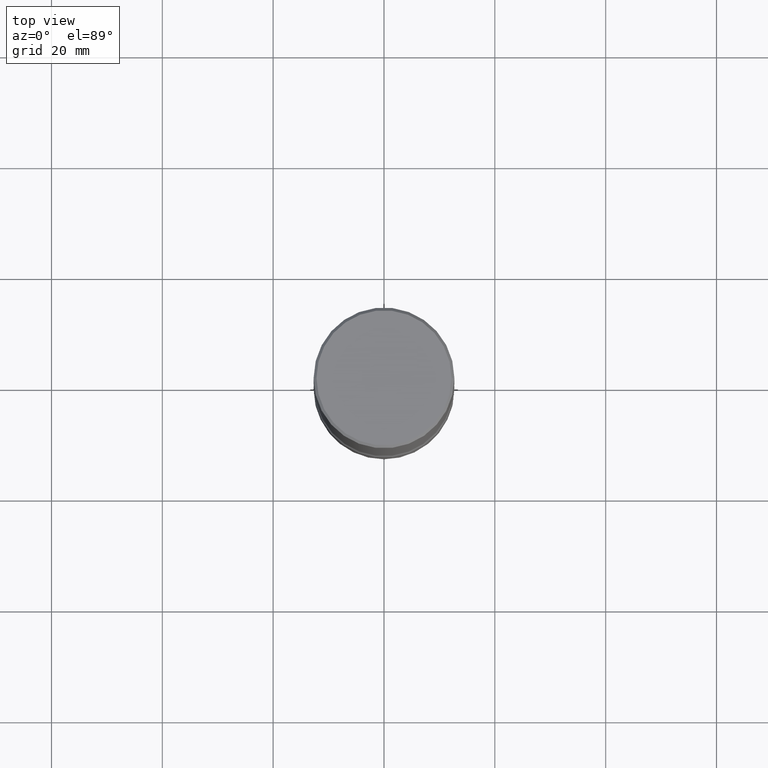
[diagram: clean part render]
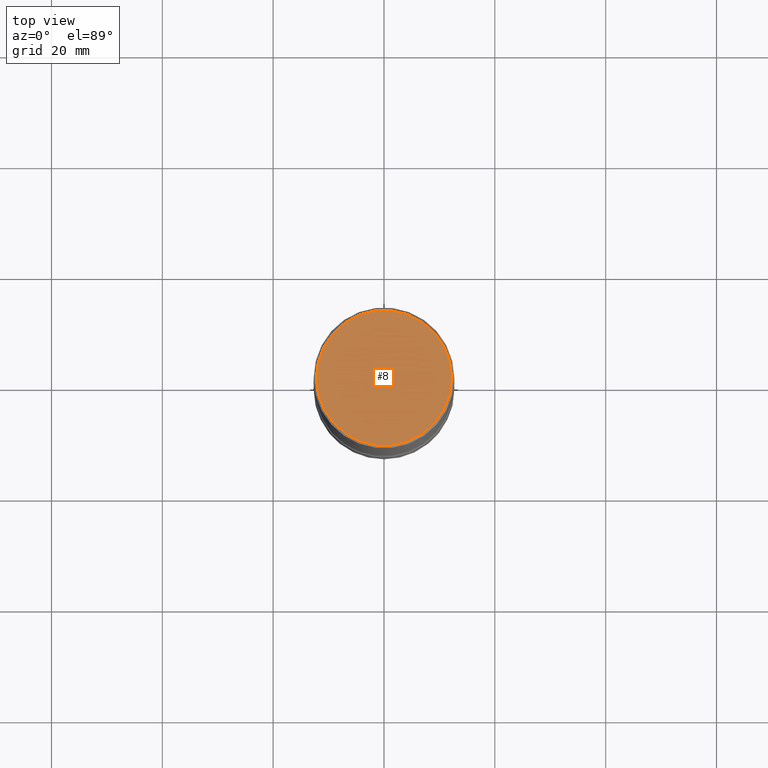
[diagram: same view with one face highlighted and labeled with its STEP entity id]
A machine part, top view. The second image highlights one B-rep face of the part: STEP entity #8.
In plain terms, the highlighted planar face has unit normal (-0, 0, 1).
Its self-contained STEP definition (entity closure, byte-faithful):
#8 = ADVANCED_FACE ( 'NONE', ( #370 ), #158, .T. ) ;
#85 = AXIS2_PLACEMENT_3D ( 'NONE', #277, #142, #541 ) ;
#96 = CIRCLE ( 'NONE', #181, 0.4799999999999995937 ) ;
#111 = CIRCLE ( 'NONE', #85, 0.4799999999999995937 ) ;
#134 = EDGE_CURVE ( 'NONE', #281, #226, #96, .T. ) ;
#142 = DIRECTION ( 'NONE',  ( 2.445468806185136597E-29, -3.491481338843145583E-15, -1.000000000000000000 ) ) ;
#150 = DIRECTION ( 'NONE',  ( -1.000000000000000000, 6.982962677686266711E-15, -4.876176775795935793E-29 ) ) ;
#151 = CARTESIAN_POINT ( 'NONE',  ( 3.351822085289404787E-15, 0.4799999999999995937, -1.669508273909557867E-15 ) ) ;
#158 = PLANE ( 'NONE',  #528 ) ;
#159 = DIRECTION ( 'NONE',  ( 2.445468806185136597E-29, -3.491481338843145583E-15, -1.000000000000000000 ) ) ;
#162 = EDGE_LOOP ( 'NONE', ( #554, #537 ) ) ;
#181 = AXIS2_PLACEMENT_3D ( 'NONE', #543, #159, #150 ) ;
#226 = VERTEX_POINT ( 'NONE', #489 ) ;
#241 = EDGE_CURVE ( 'NONE', #226, #281, #111, .T. ) ;
#276 = DIRECTION ( 'NONE',  ( -2.438088387897960049E-29, 3.491481338843145188E-15, 1.000000000000000000 ) ) ;
#277 = CARTESIAN_POINT ( 'NONE',  ( 0.000000000000000000, 0.000000000000000000, 0.000000000000000000 ) ) ;
#281 = VERTEX_POINT ( 'NONE', #382 ) ;
#370 = FACE_OUTER_BOUND ( 'NONE', #162, .T. ) ;
#382 = CARTESIAN_POINT ( 'NONE',  ( 0.4799999999999995937, -3.396558832296480127E-15, 2.359727204893467688E-29 ) ) ;
#404 = DIRECTION ( 'NONE',  ( 1.000000000000000000, -6.982962677686265922E-15, 4.876176775795935793E-29 ) ) ;
#489 = CARTESIAN_POINT ( 'NONE',  ( -0.4799999999999995937, 3.351822085289405181E-15, -2.340564852382047163E-29 ) ) ;
#528 = AXIS2_PLACEMENT_3D ( 'NONE', #151, #276, #404 ) ;
#537 = ORIENTED_EDGE ( 'NONE', *, *, #134, .F. ) ;
#541 = DIRECTION ( 'NONE',  ( -1.000000000000000000, 6.982962677686266711E-15, -4.876176775795935793E-29 ) ) ;
#543 = CARTESIAN_POINT ( 'NONE',  ( 0.000000000000000000, 0.000000000000000000, 0.000000000000000000 ) ) ;
#554 = ORIENTED_EDGE ( 'NONE', *, *, #241, .F. ) ;